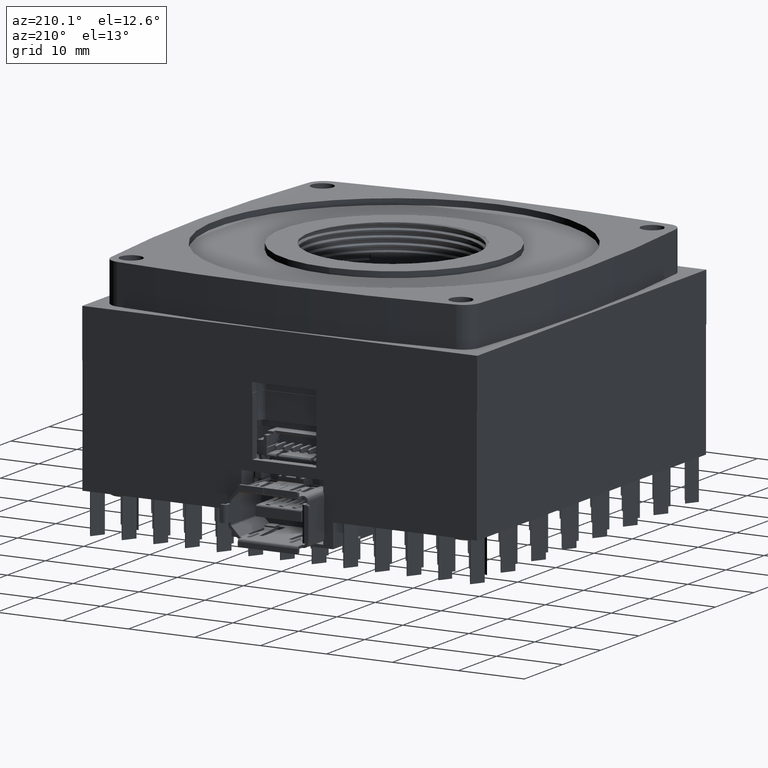
[diagram: clean part render]
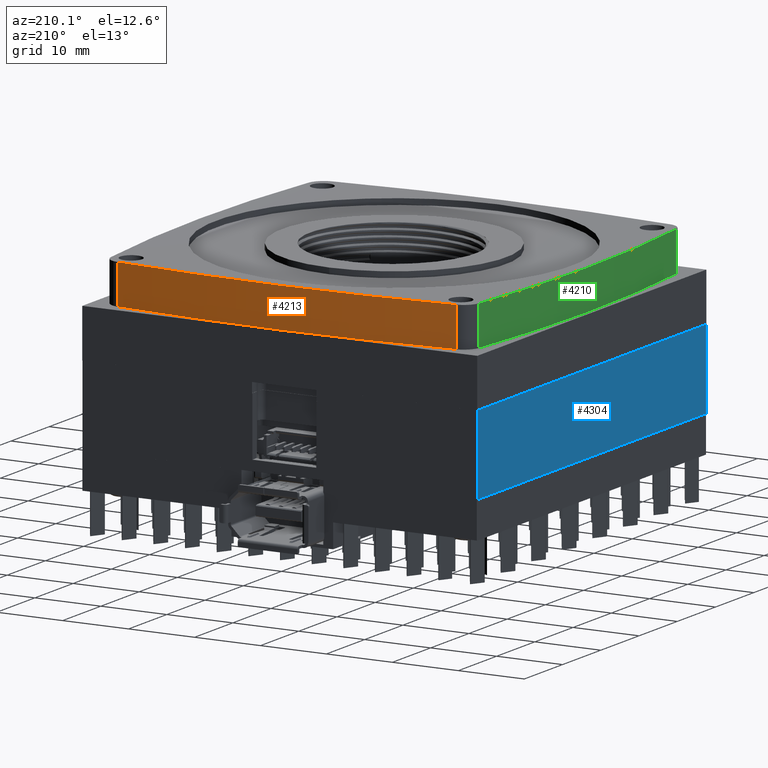
[diagram: same view with three faces highlighted in distinct colors, each labeled with its STEP entity id]
A machine part, auxiliary view with three faces highlighted in distinct colors.
Their STEP definitions:

[orange] entity #4213 — the highlighted cylindrical surface (partial cylindrical patch) has radius 218 mm, axis along (0, 0, -1).
#4213=ADVANCED_FACE('',(#7398),#6959,.T.);
#6959=CYLINDRICAL_SURFACE('',#51804,218.);
#7398=FACE_OUTER_BOUND('',#9863,.T.);
#9863=EDGE_LOOP('',(#25186,#25187,#25188,#25189));
#13342=LINE('',#69206,#19223);
#13343=LINE('',#69210,#19224);
#19223=VECTOR('',#55592,1.);
#19224=VECTOR('',#55595,1.);
#25186=ORIENTED_EDGE('',*,*,#43835,.F.);
#25187=ORIENTED_EDGE('',*,*,#43836,.T.);
#25188=ORIENTED_EDGE('',*,*,#43837,.T.);
#25189=ORIENTED_EDGE('',*,*,#43838,.T.);
#39120=VERTEX_POINT('',#69204);
#39121=VERTEX_POINT('',#69205);
#39122=VERTEX_POINT('',#69207);
#39123=VERTEX_POINT('',#69209);
#43835=EDGE_CURVE('',#39120,#39121,#50793,.T.);
#43836=EDGE_CURVE('',#39120,#39122,#13342,.T.);
#43837=EDGE_CURVE('',#39122,#39123,#50794,.T.);
#43838=EDGE_CURVE('',#39123,#39121,#13343,.T.);
#50793=CIRCLE('',#51802,218.);
#50794=CIRCLE('',#51803,218.);
#51802=AXIS2_PLACEMENT_3D('',#69203,#55590,#55591);
#51803=AXIS2_PLACEMENT_3D('',#69208,#55593,#55594);
#51804=AXIS2_PLACEMENT_3D('',#69211,#55596,#55597);
#55590=DIRECTION('',(0.,0.,-1.));
#55591=DIRECTION('',(1.,1.27319154200133E-016,0.));
#55592=DIRECTION('',(0.,0.,1.));
#55593=DIRECTION('',(0.,0.,-1.));
#55594=DIRECTION('',(1.,1.27319154200133E-016,0.));
#55595=DIRECTION('',(0.,0.,-1.));
#55596=DIRECTION('',(0.,0.,1.));
#55597=DIRECTION('',(1.,0.,0.));
#69203=CARTESIAN_POINT('',(30.39645,218.5,-6.));
#69204=CARTESIAN_POINT('',(55.7691802380987,1.98158378497068,-6.));
#69205=CARTESIAN_POINT('',(4.40805619856098,2.05461800347573,-6.));
#69206=CARTESIAN_POINT('',(55.7691802380987,1.98158378497068,-6.));
#69207=CARTESIAN_POINT('',(55.7691802380987,1.98158378497068,0.));
#69208=CARTESIAN_POINT('',(30.39645,218.5,0.));
#69209=CARTESIAN_POINT('',(4.40805619856098,2.05461800347573,0.));
#69210=CARTESIAN_POINT('',(4.40805619856098,2.05461800347573,-6.));
#69211=CARTESIAN_POINT('',(30.39645,218.5,-6.));

[blue] entity #4304 — the highlighted planar face has unit normal (-1, 0, 0).
#992=PLANE('',#52104);
#4304=ADVANCED_FACE('',(#7459),#992,.T.);
#7459=FACE_OUTER_BOUND('',#10038,.T.);
#10038=EDGE_LOOP('',(#25714,#25715,#25716,#25717));
#13513=LINE('',#70596,#19394);
#13514=LINE('',#70599,#19395);
#13515=LINE('',#70601,#19396);
#13516=LINE('',#70603,#19397);
#19394=VECTOR('',#56365,1.);
#19395=VECTOR('',#56366,1.);
#19396=VECTOR('',#56367,1.);
#19397=VECTOR('',#56368,1.);
#25714=ORIENTED_EDGE('',*,*,#44230,.T.);
#25715=ORIENTED_EDGE('',*,*,#44231,.T.);
#25716=ORIENTED_EDGE('',*,*,#44232,.F.);
#25717=ORIENTED_EDGE('',*,*,#44233,.T.);
#39459=VERTEX_POINT('',#70597);
#39460=VERTEX_POINT('',#70598);
#39461=VERTEX_POINT('',#70600);
#39462=VERTEX_POINT('',#70602);
#44230=EDGE_CURVE('',#39459,#39460,#13513,.T.);
#44231=EDGE_CURVE('',#39460,#39461,#13514,.T.);
#44232=EDGE_CURVE('',#39462,#39461,#13515,.T.);
#44233=EDGE_CURVE('',#39462,#39459,#13516,.T.);
#52104=AXIS2_PLACEMENT_3D('',#70604,#56369,#56370);
#56365=DIRECTION('',(0.,1.,0.));
#56366=DIRECTION('',(0.,0.,-1.));
#56367=DIRECTION('',(0.,1.,0.));
#56368=DIRECTION('',(0.,0.,1.));
#56369=DIRECTION('',(-1.,0.,0.));
#56370=DIRECTION('',(0.,0.,1.));
#70596=CARTESIAN_POINT('',(-29.2583717983092,-68.4089404568296,12.));
#70597=CARTESIAN_POINT('',(-29.2583717983092,-29.85,12.));
#70598=CARTESIAN_POINT('',(-29.2583717983092,29.85,12.));
#70599=CARTESIAN_POINT('',(-29.2583717983092,29.85,12.));
#70600=CARTESIAN_POINT('',(-29.2583717983092,29.85,0.));
#70601=CARTESIAN_POINT('',(-29.2583717983092,-68.4089404568296,0.));
#70602=CARTESIAN_POINT('',(-29.2583717983092,-29.85,0.));
#70603=CARTESIAN_POINT('',(-29.2583717983092,-29.85,12.));
#70604=CARTESIAN_POINT('',(-29.2583717983092,-68.4089404568296,12.));

[green] entity #4210 — the highlighted cylindrical surface (partial cylindrical patch) has radius 218 mm, axis along (0, 0, -1).
#4210=ADVANCED_FACE('',(#7395),#6956,.T.);
#6956=CYLINDRICAL_SURFACE('',#51795,218.000000000286);
#7395=FACE_OUTER_BOUND('',#9860,.T.);
#9860=EDGE_LOOP('',(#25174,#25175,#25176,#25177));
#13336=LINE('',#69179,#19217);
#13337=LINE('',#69183,#19218);
#19217=VECTOR('',#55568,1.);
#19218=VECTOR('',#55571,1.);
#25174=ORIENTED_EDGE('',*,*,#43823,.T.);
#25175=ORIENTED_EDGE('',*,*,#43824,.T.);
#25176=ORIENTED_EDGE('',*,*,#43825,.F.);
#25177=ORIENTED_EDGE('',*,*,#43826,.T.);
#39108=VERTEX_POINT('',#69177);
#39109=VERTEX_POINT('',#69178);
#39110=VERTEX_POINT('',#69180);
#39111=VERTEX_POINT('',#69182);
#43823=EDGE_CURVE('',#39108,#39109,#50787,.T.);
#43824=EDGE_CURVE('',#39109,#39110,#13336,.T.);
#43825=EDGE_CURVE('',#39111,#39110,#50788,.T.);
#43826=EDGE_CURVE('',#39111,#39108,#13337,.T.);
#50787=CIRCLE('',#51793,218.000000000286);
#50788=CIRCLE('',#51794,218.000000000286);
#51793=AXIS2_PLACEMENT_3D('',#69176,#55566,#55567);
#51794=AXIS2_PLACEMENT_3D('',#69181,#55569,#55570);
#51795=AXIS2_PLACEMENT_3D('',#69184,#55572,#55573);
#55566=DIRECTION('',(0.,0.,-1.));
#55567=DIRECTION('',(1.,1.27319154199965E-016,0.));
#55568=DIRECTION('',(0.,0.,-1.));
#55569=DIRECTION('',(0.,0.,-1.));
#55570=DIRECTION('',(1.,1.27319154199965E-016,0.));
#55571=DIRECTION('',(0.,0.,1.));
#55572=DIRECTION('',(0.,0.,1.));
#55573=DIRECTION('',(1.,0.,0.));
#69176=CARTESIAN_POINT('',(218.69645,30.,0.));
#69177=CARTESIAN_POINT('',(2.22360144218378,4.24139294547148,0.));
#69178=CARTESIAN_POINT('',(2.22360144218384,55.758607054529,0.));
#69179=CARTESIAN_POINT('',(2.22360144218381,55.758607054529,-6.));
#69180=CARTESIAN_POINT('',(2.22360144218384,55.758607054529,-6.));
#69181=CARTESIAN_POINT('',(218.69645,30.,-6.));
#69182=CARTESIAN_POINT('',(2.22360144218378,4.24139294547148,-6.));
#69183=CARTESIAN_POINT('',(2.22360144218375,4.24139294547147,-6.));
#69184=CARTESIAN_POINT('',(218.69645,30.,-6.));